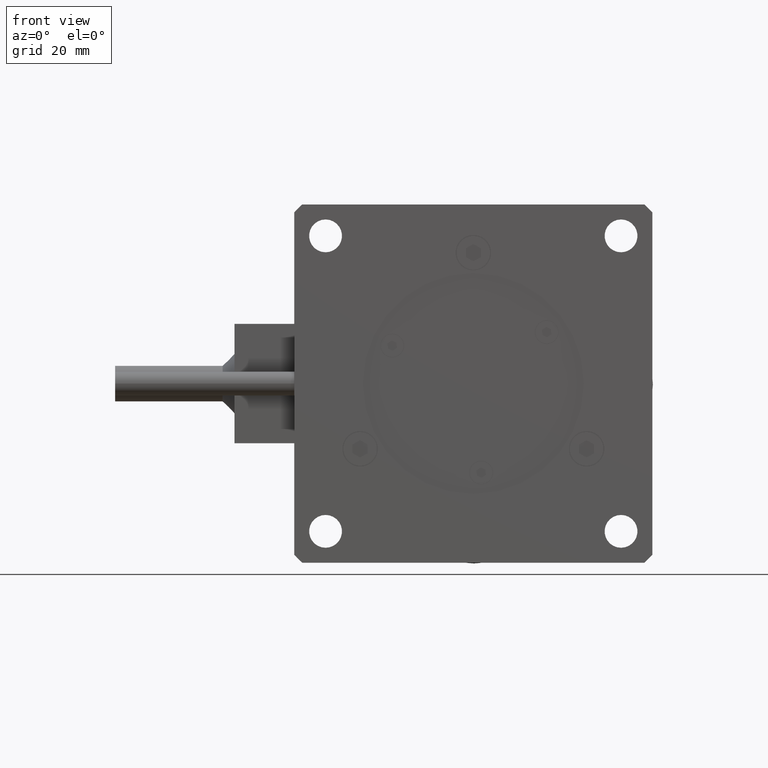
[diagram: clean part render]
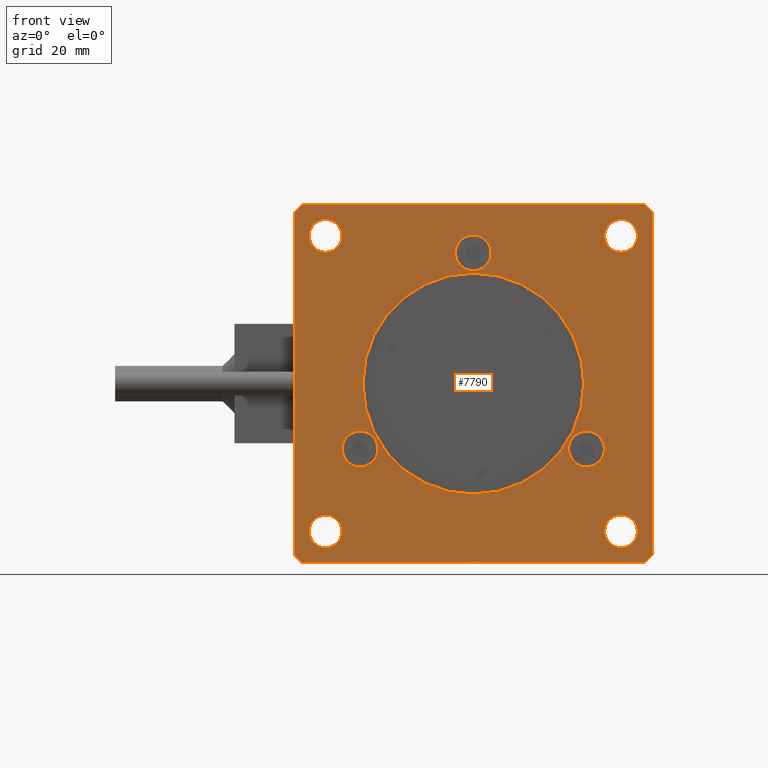
[diagram: same view with one face highlighted and labeled with its STEP entity id]
A machine part, front view. The second image highlights one B-rep face of the part: STEP entity #7790.
In plain terms, the highlighted planar face has unit normal (0, -1, -0).
Its self-contained STEP definition (entity closure, byte-faithful):
#38 = ORIENTED_EDGE ( 'NONE', *, *, #2547, .T. ) ;
#70 = VECTOR ( 'NONE', #2215, 1000.000000000000000 ) ;
#98 = FACE_BOUND ( 'NONE', #1835, .T. ) ;
#104 = EDGE_CURVE ( 'NONE', #1844, #6515, #1151, .T. ) ;
#120 = CARTESIAN_POINT ( 'NONE',  ( 48.96595634287916000, 8.673617379884035500E-015, 19.04999999999991900 ) ) ;
#205 = FACE_BOUND ( 'NONE', #608, .T. ) ;
#229 = CARTESIAN_POINT ( 'NONE',  ( 60.00000000000000000, 1.040834085586084300E-014, 6.938893903907228400E-015 ) ) ;
#259 = ORIENTED_EDGE ( 'NONE', *, *, #4125, .T. ) ;
#336 = CARTESIAN_POINT ( 'NONE',  ( 60.00000000000000700, 1.040834085586084300E-014, 58.67490191787935300 ) ) ;
#425 = FACE_OUTER_BOUND ( 'NONE', #8254, .T. ) ;
#427 = CIRCLE ( 'NONE', #4350, 41.49999999999999300 ) ;
#449 = CARTESIAN_POINT ( 'NONE',  ( 1.325098082120671700, 3.469446951953614200E-015, 0.0000000000000000000 ) ) ;
#459 = CARTESIAN_POINT ( 'NONE',  ( 30.00000000000000400, 6.938893903907228400E-015, 30.00000000000001100 ) ) ;
#471 = EDGE_CURVE ( 'NONE', #1898, #4271, #4196, .T. ) ;
#472 = AXIS2_PLACEMENT_3D ( 'NONE', #5851, #7261, #3744 ) ;
#492 = CIRCLE ( 'NONE', #8330, 41.49999999999999300 ) ;
#547 = DIRECTION ( 'NONE',  ( -1.550910762415538600E-016, 1.000000000000000000, 1.273579337255762800E-032 ) ) ;
#608 = EDGE_LOOP ( 'NONE', ( #1247, #8820 ) ) ;
#669 = ORIENTED_EDGE ( 'NONE', *, *, #8505, .T. ) ;
#716 = EDGE_CURVE ( 'NONE', #4271, #1898, #4301, .T. ) ;
#819 = DIRECTION ( 'NONE',  ( -1.550910762415538600E-016, 1.000000000000000000, 1.273579337255762800E-032 ) ) ;
#833 = LINE ( 'NONE', #3332, #7180 ) ;
#873 = VERTEX_POINT ( 'NONE', #4559 ) ;
#881 = EDGE_CURVE ( 'NONE', #7849, #5098, #427, .T. ) ;
#903 = CARTESIAN_POINT ( 'NONE',  ( 5.251262658470975200, 3.469446951953614200E-015, 8.001262658470700700 ) ) ;
#955 = DIRECTION ( 'NONE',  ( 0.0000000000000000000, 0.0000000000000000000, 1.000000000000000000 ) ) ;
#1024 = AXIS2_PLACEMENT_3D ( 'NONE', #2068, #2882, #5756 ) ;
#1036 = ORIENTED_EDGE ( 'NONE', *, *, #8930, .T. ) ;
#1087 = LINE ( 'NONE', #229, #8341 ) ;
#1091 = CIRCLE ( 'NONE', #4235, 2.999999999999995600 ) ;
#1113 = LINE ( 'NONE', #4119, #1224 ) ;
#1151 = CIRCLE ( 'NONE', #2219, 2.749999999999995600 ) ;
#1224 = VECTOR ( 'NONE', #1926, 1000.000000000000000 ) ;
#1241 = VERTEX_POINT ( 'NONE', #1983 ) ;
#1247 = ORIENTED_EDGE ( 'NONE', *, *, #8548, .T. ) ;
#1253 = EDGE_CURVE ( 'NONE', #7428, #5804, #2910, .T. ) ;
#1295 = DIRECTION ( 'NONE',  ( -1.550910762415538600E-016, 1.000000000000000000, 1.273579337255762800E-032 ) ) ;
#1308 = EDGE_LOOP ( 'NONE', ( #4160, #1864 ) ) ;
#1356 = AXIS2_PLACEMENT_3D ( 'NONE', #6547, #6516, #7985 ) ;
#1459 = DIRECTION ( 'NONE',  ( -1.550910762415538600E-016, 1.000000000000000000, 1.273579337255762800E-032 ) ) ;
#1493 = EDGE_LOOP ( 'NONE', ( #6080, #8869 ) ) ;
#1505 = CARTESIAN_POINT ( 'NONE',  ( 6.938893903907228400E-015, 3.469446951953614200E-015, 58.67490191787936000 ) ) ;
#1566 = AXIS2_PLACEMENT_3D ( 'NONE', #4404, #3680, #4315 ) ;
#1745 = DIRECTION ( 'NONE',  ( -1.550910762415538600E-016, 1.000000000000000000, 1.273579337255762800E-032 ) ) ;
#1759 = VERTEX_POINT ( 'NONE', #4197 ) ;
#1835 = EDGE_LOOP ( 'NONE', ( #8520, #1036 ) ) ;
#1842 = DIRECTION ( 'NONE',  ( -1.550910762415538600E-016, 1.000000000000000000, 1.273579337255762800E-032 ) ) ;
#1844 = VERTEX_POINT ( 'NONE', #9419 ) ;
#1858 = DIRECTION ( 'NONE',  ( 0.0000000000000000000, 0.0000000000000000000, 1.000000000000000000 ) ) ;
#1864 = ORIENTED_EDGE ( 'NONE', *, *, #2059, .T. ) ;
#1898 = VERTEX_POINT ( 'NONE', #2112 ) ;
#1926 = DIRECTION ( 'NONE',  ( -1.000000000000000000, -9.957992501029598700E-017, -1.088317835488390000E-016 ) ) ;
#1945 = CARTESIAN_POINT ( 'NONE',  ( 48.96595634287916000, 8.673617379884035500E-015, 19.04999999999991900 ) ) ;
#1983 = CARTESIAN_POINT ( 'NONE',  ( 54.74873734152903600, 6.938893903907228400E-015, 51.99873734152931300 ) ) ;
#2059 = EDGE_CURVE ( 'NONE', #6515, #1844, #7254, .T. ) ;
#2068 = CARTESIAN_POINT ( 'NONE',  ( 30.00000000000000700, 6.938893903907228400E-015, 51.90000000000000600 ) ) ;
#2112 = CARTESIAN_POINT ( 'NONE',  ( 5.251262658470973400, 3.469446951953613800E-015, 2.501262658470709200 ) ) ;
#2135 = CARTESIAN_POINT ( 'NONE',  ( 60.00000000000000000, 1.040834085586084300E-014, 1.325098082120664600 ) ) ;
#2143 = CIRCLE ( 'NONE', #1024, 2.999999999999995600 ) ;
#2215 = DIRECTION ( 'NONE',  ( 1.000000000000000000, 9.957992501029598700E-017, 5.100766768294541300E-017 ) ) ;
#2219 = AXIS2_PLACEMENT_3D ( 'NONE', #8446, #547, #6291 ) ;
#2280 = CIRCLE ( 'NONE', #5345, 18.50000000000000000 ) ;
#2345 = CARTESIAN_POINT ( 'NONE',  ( 54.74873734152903600, 6.938893903907228400E-015, 57.49873734152930600 ) ) ;
#2363 = FACE_BOUND ( 'NONE', #1493, .T. ) ;
#2423 = EDGE_CURVE ( 'NONE', #6161, #2605, #1113, .T. ) ;
#2499 = AXIS2_PLACEMENT_3D ( 'NONE', #8836, #5866, #8055 ) ;
#2522 = ORIENTED_EDGE ( 'NONE', *, *, #716, .T. ) ;
#2547 = EDGE_CURVE ( 'NONE', #6890, #1241, #4047, .T. ) ;
#2560 = CIRCLE ( 'NONE', #7583, 2.749999999999995600 ) ;
#2605 = VERTEX_POINT ( 'NONE', #8038 ) ;
#2698 = EDGE_CURVE ( 'NONE', #8990, #873, #1091, .T. ) ;
#2709 = DIRECTION ( 'NONE',  ( -1.672022627447525200E-015, -2.784477028029739300E-031, 1.000000000000000000 ) ) ;
#2747 = ORIENTED_EDGE ( 'NONE', *, *, #3839, .T. ) ;
#2765 = PLANE ( 'NONE',  #2803 ) ;
#2803 = AXIS2_PLACEMENT_3D ( 'NONE', #2857, #8594, #7856 ) ;
#2857 = CARTESIAN_POINT ( 'NONE',  ( 30.00000000000000400, 6.938893903907228400E-015, 30.00000000000001100 ) ) ;
#2871 = EDGE_LOOP ( 'NONE', ( #259, #669 ) ) ;
#2882 = DIRECTION ( 'NONE',  ( -1.550910762415538600E-016, 1.000000000000000000, 1.273579337255762800E-032 ) ) ;
#2892 = CIRCLE ( 'NONE', #5487, 2.999999999999995600 ) ;
#2910 = CIRCLE ( 'NONE', #3138, 2.749999999999995600 ) ;
#2930 = DIRECTION ( 'NONE',  ( 0.0000000000000000000, 0.0000000000000000000, 1.000000000000000000 ) ) ;
#2969 = EDGE_LOOP ( 'NONE', ( #2522, #8938 ) ) ;
#2981 = AXIS2_PLACEMENT_3D ( 'NONE', #120, #6708, #5204 ) ;
#2982 = ORIENTED_EDGE ( 'NONE', *, *, #5126, .T. ) ;
#2996 = CIRCLE ( 'NONE', #2981, 2.999999999999999100 ) ;
#3042 = FACE_BOUND ( 'NONE', #1308, .T. ) ;
#3117 = CARTESIAN_POINT ( 'NONE',  ( 48.96595634287916000, 8.673617379884035500E-015, 16.04999999999991900 ) ) ;
#3138 = AXIS2_PLACEMENT_3D ( 'NONE', #4178, #7814, #4909 ) ;
#3241 = DIRECTION ( 'NONE',  ( -1.550910762415538600E-016, 1.000000000000000000, 1.273579337255762800E-032 ) ) ;
#3260 = VERTEX_POINT ( 'NONE', #3117 ) ;
#3318 = VERTEX_POINT ( 'NONE', #8339 ) ;
#3332 = CARTESIAN_POINT ( 'NONE',  ( 3.469446951953614200E-015, 3.469446951953614200E-015, 30.00000000000001400 ) ) ;
#3442 = AXIS2_PLACEMENT_3D ( 'NONE', #8544, #1295, #7094 ) ;
#3680 = DIRECTION ( 'NONE',  ( -1.550910762415538600E-016, 1.000000000000000000, 1.273579337255762800E-032 ) ) ;
#3744 = DIRECTION ( 'NONE',  ( 8.360113137237626200E-017, 0.0000000000000000000, 1.000000000000000000 ) ) ;
#3839 = EDGE_CURVE ( 'NONE', #1241, #6890, #2560, .T. ) ;
#3850 = DIRECTION ( 'NONE',  ( -1.550910762415538600E-016, 1.000000000000000000, 1.273579337255762800E-032 ) ) ;
#3852 = VERTEX_POINT ( 'NONE', #6211 ) ;
#3905 = DIRECTION ( 'NONE',  ( 0.0000000000000000000, 0.0000000000000000000, 1.000000000000000000 ) ) ;
#3992 = CIRCLE ( 'NONE', #8717, 2.999999999999999100 ) ;
#4047 = CIRCLE ( 'NONE', #3442, 2.749999999999995600 ) ;
#4119 = CARTESIAN_POINT ( 'NONE',  ( 6.938893903907228400E-015, 3.469446951953614200E-015, 60.00000000000000000 ) ) ;
#4125 = EDGE_CURVE ( 'NONE', #3852, #6716, #7430, .T. ) ;
#4136 = DIRECTION ( 'NONE',  ( 0.0000000000000000000, 0.0000000000000000000, 1.000000000000000000 ) ) ;
#4160 = ORIENTED_EDGE ( 'NONE', *, *, #104, .T. ) ;
#4161 = CARTESIAN_POINT ( 'NONE',  ( 30.00000000000000700, 6.938893903907228400E-015, 48.50000000000000700 ) ) ;
#4178 = CARTESIAN_POINT ( 'NONE',  ( 5.251262658470787800, 3.469446951953614200E-015, 54.74873734152912200 ) ) ;
#4196 = CIRCLE ( 'NONE', #7611, 2.749999999999995600 ) ;
#4197 = CARTESIAN_POINT ( 'NONE',  ( 30.00000000000000000, 6.938893903907228400E-015, 11.50000000000001100 ) ) ;
#4228 = CARTESIAN_POINT ( 'NONE',  ( 30.00000000000000400, 6.938893903907228400E-015, 30.00000000000001100 ) ) ;
#4235 = AXIS2_PLACEMENT_3D ( 'NONE', #5080, #1459, #2930 ) ;
#4271 = VERTEX_POINT ( 'NONE', #903 ) ;
#4301 = CIRCLE ( 'NONE', #1566, 2.749999999999995600 ) ;
#4315 = DIRECTION ( 'NONE',  ( 0.0000000000000000000, 0.0000000000000000000, 1.000000000000000000 ) ) ;
#4348 = EDGE_CURVE ( 'NONE', #7883, #4894, #1087, .T. ) ;
#4350 = AXIS2_PLACEMENT_3D ( 'NONE', #4464, #5217, #5949 ) ;
#4404 = CARTESIAN_POINT ( 'NONE',  ( 5.251262658470975200, 3.469446951953614200E-015, 5.251262658470704300 ) ) ;
#4464 = CARTESIAN_POINT ( 'NONE',  ( 30.00000000000000400, 6.938893903907228400E-015, 30.00000000000001100 ) ) ;
#4559 = CARTESIAN_POINT ( 'NONE',  ( 30.00000000000000700, 6.938893903907228400E-015, 48.90000000000001300 ) ) ;
#4565 = CARTESIAN_POINT ( 'NONE',  ( 5.251262658470975200, 3.469446951953614200E-015, 5.251262658470704300 ) ) ;
#4705 = DIRECTION ( 'NONE',  ( 2.324111452152060100E-014, 3.564130595878066300E-030, 1.000000000000000000 ) ) ;
#4766 = ORIENTED_EDGE ( 'NONE', *, *, #8747, .F. ) ;
#4894 = VERTEX_POINT ( 'NONE', #336 ) ;
#4909 = DIRECTION ( 'NONE',  ( 0.0000000000000000000, 0.0000000000000000000, 1.000000000000000000 ) ) ;
#4949 = LINE ( 'NONE', #7220, #70 ) ;
#5080 = CARTESIAN_POINT ( 'NONE',  ( 30.00000000000000700, 6.938893903907228400E-015, 51.90000000000000600 ) ) ;
#5098 = VERTEX_POINT ( 'NONE', #449 ) ;
#5126 = EDGE_CURVE ( 'NONE', #6210, #7849, #833, .T. ) ;
#5199 = EDGE_CURVE ( 'NONE', #3260, #9152, #3992, .T. ) ;
#5204 = DIRECTION ( 'NONE',  ( 0.0000000000000000000, 0.0000000000000000000, 1.000000000000000000 ) ) ;
#5217 = DIRECTION ( 'NONE',  ( 1.550910762415538600E-016, -1.000000000000000000, -1.273579337255762800E-032 ) ) ;
#5311 = DIRECTION ( 'NONE',  ( 1.224646799147353000E-016, -6.703745552277535400E-033, 1.000000000000000000 ) ) ;
#5345 = AXIS2_PLACEMENT_3D ( 'NONE', #459, #8297, #6242 ) ;
#5405 = ORIENTED_EDGE ( 'NONE', *, *, #881, .T. ) ;
#5487 = AXIS2_PLACEMENT_3D ( 'NONE', #8779, #819, #5906 ) ;
#5506 = AXIS2_PLACEMENT_3D ( 'NONE', #7532, #1842, #3905 ) ;
#5615 = CIRCLE ( 'NONE', #6344, 41.49999999999999300 ) ;
#5756 = DIRECTION ( 'NONE',  ( 0.0000000000000000000, 0.0000000000000000000, 1.000000000000000000 ) ) ;
#5772 = AXIS2_PLACEMENT_3D ( 'NONE', #6727, #3850, #7418 ) ;
#5785 = FACE_BOUND ( 'NONE', #7469, .T. ) ;
#5793 = CARTESIAN_POINT ( 'NONE',  ( 0.0000000000000000000, 3.469446951953614200E-015, 1.325098082120675000 ) ) ;
#5804 = VERTEX_POINT ( 'NONE', #5904 ) ;
#5851 = CARTESIAN_POINT ( 'NONE',  ( 30.00000000000000400, 6.938893903907228400E-015, 30.00000000000001100 ) ) ;
#5866 = DIRECTION ( 'NONE',  ( -1.550910762415538600E-016, 1.000000000000000000, 1.273579337255762800E-032 ) ) ;
#5904 = CARTESIAN_POINT ( 'NONE',  ( 5.251262658470787800, 3.469446951953614200E-015, 57.49873734152912200 ) ) ;
#5906 = DIRECTION ( 'NONE',  ( 0.0000000000000000000, 0.0000000000000000000, 1.000000000000000000 ) ) ;
#5949 = DIRECTION ( 'NONE',  ( 8.360113137237626200E-017, 0.0000000000000000000, 1.000000000000000000 ) ) ;
#6029 = VERTEX_POINT ( 'NONE', #4161 ) ;
#6080 = ORIENTED_EDGE ( 'NONE', *, *, #6426, .T. ) ;
#6127 = ORIENTED_EDGE ( 'NONE', *, *, #2698, .T. ) ;
#6161 = VERTEX_POINT ( 'NONE', #7928 ) ;
#6210 = VERTEX_POINT ( 'NONE', #1505 ) ;
#6211 = CARTESIAN_POINT ( 'NONE',  ( 11.03404365712069400, 5.204170427930421300E-015, 22.05000000000018200 ) ) ;
#6242 = DIRECTION ( 'NONE',  ( 1.875376730785737500E-016, 0.0000000000000000000, 1.000000000000000000 ) ) ;
#6291 = DIRECTION ( 'NONE',  ( 0.0000000000000000000, 0.0000000000000000000, 1.000000000000000000 ) ) ;
#6295 = CARTESIAN_POINT ( 'NONE',  ( 30.00000000000000400, 6.938893903907228400E-015, 30.00000000000001100 ) ) ;
#6328 = DIRECTION ( 'NONE',  ( -1.550910762415538600E-016, 1.000000000000000000, 1.273579337255762800E-032 ) ) ;
#6344 = AXIS2_PLACEMENT_3D ( 'NONE', #4228, #6328, #2709 ) ;
#6426 = EDGE_CURVE ( 'NONE', #5804, #7428, #7663, .T. ) ;
#6515 = VERTEX_POINT ( 'NONE', #7037 ) ;
#6516 = DIRECTION ( 'NONE',  ( -1.550910762415538600E-016, 1.000000000000000000, 1.273579337255762800E-032 ) ) ;
#6547 = CARTESIAN_POINT ( 'NONE',  ( 30.00000000000000400, 6.938893903907228400E-015, 30.00000000000001100 ) ) ;
#6627 = CARTESIAN_POINT ( 'NONE',  ( 11.03404365712069400, 5.204170427930421300E-015, 16.05000000000018500 ) ) ;
#6635 = ORIENTED_EDGE ( 'NONE', *, *, #4348, .T. ) ;
#6680 = FACE_BOUND ( 'NONE', #6990, .T. ) ;
#6708 = DIRECTION ( 'NONE',  ( -1.550910762415538600E-016, 1.000000000000000000, 1.273579337255762800E-032 ) ) ;
#6716 = VERTEX_POINT ( 'NONE', #6627 ) ;
#6727 = CARTESIAN_POINT ( 'NONE',  ( 54.74873734152904300, 6.938893903907228400E-015, 5.251262658470718500 ) ) ;
#6747 = EDGE_CURVE ( 'NONE', #2605, #6210, #7492, .T. ) ;
#6837 = CIRCLE ( 'NONE', #1356, 18.50000000000000000 ) ;
#6890 = VERTEX_POINT ( 'NONE', #2345 ) ;
#6990 = EDGE_LOOP ( 'NONE', ( #38, #2747 ) ) ;
#7016 = DIRECTION ( 'NONE',  ( -1.550910762415538600E-016, 1.000000000000000000, 1.273579337255762800E-032 ) ) ;
#7037 = CARTESIAN_POINT ( 'NONE',  ( 54.74873734152904300, 6.938893903907228400E-015, 2.501262658470722900 ) ) ;
#7052 = EDGE_CURVE ( 'NONE', #6029, #1759, #2280, .T. ) ;
#7094 = DIRECTION ( 'NONE',  ( 0.0000000000000000000, 0.0000000000000000000, 1.000000000000000000 ) ) ;
#7162 = ORIENTED_EDGE ( 'NONE', *, *, #6747, .T. ) ;
#7180 = VECTOR ( 'NONE', #9193, 1000.000000000000000 ) ;
#7220 = CARTESIAN_POINT ( 'NONE',  ( 0.0000000000000000000, 3.469446951953614200E-015, 0.0000000000000000000 ) ) ;
#7225 = ORIENTED_EDGE ( 'NONE', *, *, #8871, .F. ) ;
#7254 = CIRCLE ( 'NONE', #5772, 2.749999999999995600 ) ;
#7261 = DIRECTION ( 'NONE',  ( 1.550910762415538600E-016, -1.000000000000000000, -1.273579337255762800E-032 ) ) ;
#7406 = ORIENTED_EDGE ( 'NONE', *, *, #7809, .T. ) ;
#7418 = DIRECTION ( 'NONE',  ( 0.0000000000000000000, 0.0000000000000000000, 1.000000000000000000 ) ) ;
#7428 = VERTEX_POINT ( 'NONE', #7451 ) ;
#7430 = CIRCLE ( 'NONE', #2499, 2.999999999999995600 ) ;
#7451 = CARTESIAN_POINT ( 'NONE',  ( 5.251262658470786000, 3.469446951953613800E-015, 51.99873734152912900 ) ) ;
#7469 = EDGE_LOOP ( 'NONE', ( #6127, #7406 ) ) ;
#7492 = CIRCLE ( 'NONE', #472, 41.49999999999999300 ) ;
#7532 = CARTESIAN_POINT ( 'NONE',  ( 5.251262658470787800, 3.469446951953614200E-015, 54.74873734152912200 ) ) ;
#7583 = AXIS2_PLACEMENT_3D ( 'NONE', #8978, #9103, #1858 ) ;
#7611 = AXIS2_PLACEMENT_3D ( 'NONE', #4565, #1745, #955 ) ;
#7663 = CIRCLE ( 'NONE', #5506, 2.749999999999995600 ) ;
#7790 = ADVANCED_FACE ( 'NONE', ( #425, #8839, #2363, #6680, #3042, #98, #5785, #205, #8029 ), #2765, .T. ) ;
#7809 = EDGE_CURVE ( 'NONE', #873, #8990, #2143, .T. ) ;
#7814 = DIRECTION ( 'NONE',  ( -1.550910762415538600E-016, 1.000000000000000000, 1.273579337255762800E-032 ) ) ;
#7849 = VERTEX_POINT ( 'NONE', #5793 ) ;
#7856 = DIRECTION ( 'NONE',  ( 1.224646799147353000E-016, -6.703745552277535400E-033, 1.000000000000000000 ) ) ;
#7883 = VERTEX_POINT ( 'NONE', #2135 ) ;
#7928 = CARTESIAN_POINT ( 'NONE',  ( 58.67490191787935300, 1.040834085586084300E-014, 60.00000000000000700 ) ) ;
#7985 = DIRECTION ( 'NONE',  ( 1.875376730785737500E-016, 0.0000000000000000000, 1.000000000000000000 ) ) ;
#8029 = FACE_BOUND ( 'NONE', #2871, .T. ) ;
#8033 = ORIENTED_EDGE ( 'NONE', *, *, #8371, .T. ) ;
#8038 = CARTESIAN_POINT ( 'NONE',  ( 1.325098082120654400, 3.469446951953614200E-015, 60.00000000000000000 ) ) ;
#8055 = DIRECTION ( 'NONE',  ( 0.0000000000000000000, 0.0000000000000000000, 1.000000000000000000 ) ) ;
#8069 = ORIENTED_EDGE ( 'NONE', *, *, #2423, .T. ) ;
#8254 = EDGE_LOOP ( 'NONE', ( #6635, #7225, #8069, #7162, #2982, #5405, #8033, #4766 ) ) ;
#8297 = DIRECTION ( 'NONE',  ( -1.550910762415538600E-016, 1.000000000000000000, 1.273579337255762800E-032 ) ) ;
#8330 = AXIS2_PLACEMENT_3D ( 'NONE', #6295, #3241, #4705 ) ;
#8339 = CARTESIAN_POINT ( 'NONE',  ( 58.67490191787933900, 1.040834085586084300E-014, 3.469446951953614200E-015 ) ) ;
#8341 = VECTOR ( 'NONE', #5311, 1000.000000000000000 ) ;
#8371 = EDGE_CURVE ( 'NONE', #5098, #3318, #4949, .T. ) ;
#8442 = CARTESIAN_POINT ( 'NONE',  ( 48.96595634287916000, 8.673617379884035500E-015, 22.04999999999991500 ) ) ;
#8446 = CARTESIAN_POINT ( 'NONE',  ( 54.74873734152904300, 6.938893903907228400E-015, 5.251262658470718500 ) ) ;
#8505 = EDGE_CURVE ( 'NONE', #6716, #3852, #2892, .T. ) ;
#8520 = ORIENTED_EDGE ( 'NONE', *, *, #7052, .T. ) ;
#8544 = CARTESIAN_POINT ( 'NONE',  ( 54.74873734152903600, 6.938893903907228400E-015, 54.74873734152931300 ) ) ;
#8548 = EDGE_CURVE ( 'NONE', #9152, #3260, #2996, .T. ) ;
#8594 = DIRECTION ( 'NONE',  ( 1.550910762415538600E-016, -1.000000000000000000, -2.569692456183123700E-032 ) ) ;
#8671 = CARTESIAN_POINT ( 'NONE',  ( 30.00000000000000700, 6.938893903907228400E-015, 54.90000000000000600 ) ) ;
#8717 = AXIS2_PLACEMENT_3D ( 'NONE', #1945, #7016, #4136 ) ;
#8747 = EDGE_CURVE ( 'NONE', #7883, #3318, #492, .T. ) ;
#8779 = CARTESIAN_POINT ( 'NONE',  ( 11.03404365712069400, 5.204170427930421300E-015, 19.05000000000018500 ) ) ;
#8820 = ORIENTED_EDGE ( 'NONE', *, *, #5199, .T. ) ;
#8836 = CARTESIAN_POINT ( 'NONE',  ( 11.03404365712069400, 5.204170427930421300E-015, 19.05000000000018500 ) ) ;
#8839 = FACE_BOUND ( 'NONE', #2969, .T. ) ;
#8869 = ORIENTED_EDGE ( 'NONE', *, *, #1253, .T. ) ;
#8871 = EDGE_CURVE ( 'NONE', #6161, #4894, #5615, .T. ) ;
#8930 = EDGE_CURVE ( 'NONE', #1759, #6029, #6837, .T. ) ;
#8938 = ORIENTED_EDGE ( 'NONE', *, *, #471, .T. ) ;
#8978 = CARTESIAN_POINT ( 'NONE',  ( 54.74873734152903600, 6.938893903907228400E-015, 54.74873734152931300 ) ) ;
#8990 = VERTEX_POINT ( 'NONE', #8671 ) ;
#9103 = DIRECTION ( 'NONE',  ( -1.550910762415538600E-016, 1.000000000000000000, 1.273579337255762800E-032 ) ) ;
#9152 = VERTEX_POINT ( 'NONE', #8442 ) ;
#9193 = DIRECTION ( 'NONE',  ( -1.224646799147353000E-016, 6.703745552277535400E-033, -1.000000000000000000 ) ) ;
#9419 = CARTESIAN_POINT ( 'NONE',  ( 54.74873734152904300, 6.938893903907228400E-015, 8.001262658470713200 ) ) ;